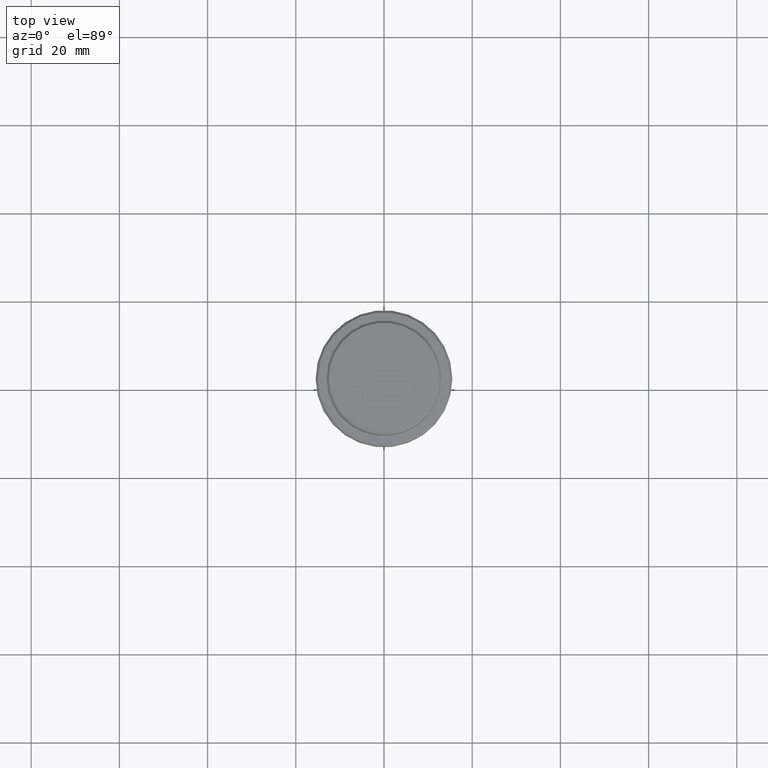
[diagram: clean part render]
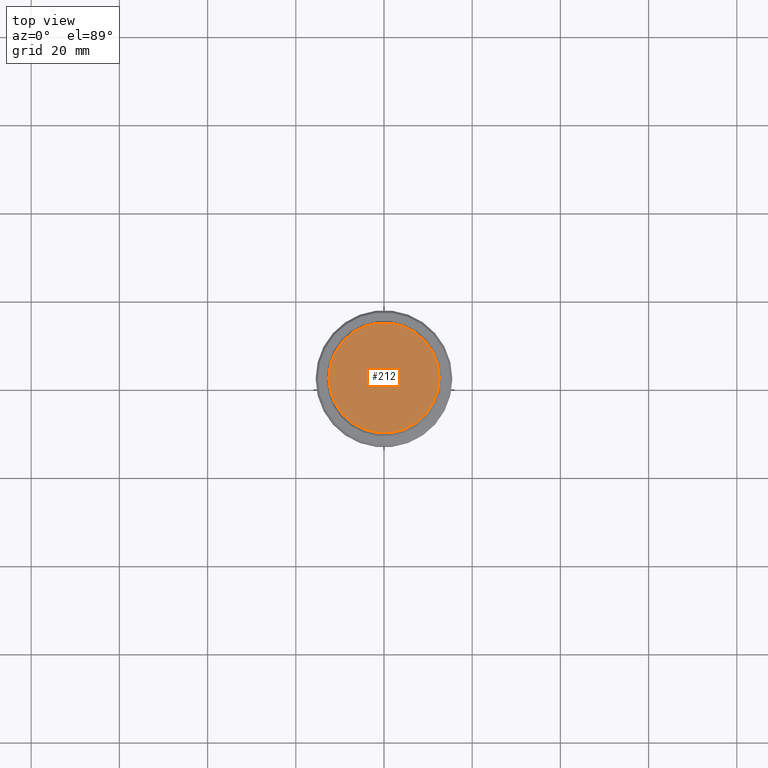
[diagram: same view with one face highlighted and labeled with its STEP entity id]
A machine part, top view. The second image highlights one B-rep face of the part: STEP entity #212.
In plain terms, the highlighted planar face has unit normal (0, -0, 1).
Its self-contained STEP definition (entity closure, byte-faithful):
#23 = DIRECTION ( 'NONE',  ( 1.000000000000000000, 0.000000000000000000, 0.000000000000000000 ) ) ;
#75 = CARTESIAN_POINT ( 'NONE',  ( -12.50000000000001243, 0.000000000000000000, 0.000000000000000000 ) ) ;
#132 = CIRCLE ( 'NONE', #799, 12.50000000000001243 ) ;
#212 = ADVANCED_FACE ( 'NONE', ( #970 ), #1301, .T. ) ;
#305 = EDGE_CURVE ( 'NONE', #1249, #921, #978, .T. ) ;
#319 = CARTESIAN_POINT ( 'NONE',  ( 0.000000000000000000, 0.000000000000000000, 0.000000000000000000 ) ) ;
#330 = DIRECTION ( 'NONE',  ( 1.000000000000000000, 0.000000000000000000, 0.000000000000000000 ) ) ;
#436 = CARTESIAN_POINT ( 'NONE',  ( 12.50000000000001243, 1.561424668912876097E-15, 0.000000000000000000 ) ) ;
#583 = CARTESIAN_POINT ( 'NONE',  ( 0.000000000000000000, 0.000000000000000000, 0.000000000000000000 ) ) ;
#618 = ORIENTED_EDGE ( 'NONE', *, *, #305, .T. ) ;
#645 = DIRECTION ( 'NONE',  ( 0.000000000000000000, -0.000000000000000000, 1.000000000000000000 ) ) ;
#799 = AXIS2_PLACEMENT_3D ( 'NONE', #583, #1151, #1139 ) ;
#921 = VERTEX_POINT ( 'NONE', #75 ) ;
#970 = FACE_OUTER_BOUND ( 'NONE', #988, .T. ) ;
#978 = CIRCLE ( 'NONE', #1417, 12.50000000000001243 ) ;
#988 = EDGE_LOOP ( 'NONE', ( #1131, #618 ) ) ;
#1108 = DIRECTION ( 'NONE',  ( -0.000000000000000000, -0.000000000000000000, 1.000000000000000000 ) ) ;
#1131 = ORIENTED_EDGE ( 'NONE', *, *, #1286, .T. ) ;
#1139 = DIRECTION ( 'NONE',  ( 1.000000000000000000, 0.000000000000000000, 0.000000000000000000 ) ) ;
#1151 = DIRECTION ( 'NONE',  ( -0.000000000000000000, -0.000000000000000000, 1.000000000000000000 ) ) ;
#1223 = CARTESIAN_POINT ( 'NONE',  ( 0.000000000000000000, 0.000000000000000000, 0.000000000000000000 ) ) ;
#1226 = AXIS2_PLACEMENT_3D ( 'NONE', #319, #645, #330 ) ;
#1249 = VERTEX_POINT ( 'NONE', #436 ) ;
#1286 = EDGE_CURVE ( 'NONE', #921, #1249, #132, .T. ) ;
#1301 = PLANE ( 'NONE',  #1226 ) ;
#1417 = AXIS2_PLACEMENT_3D ( 'NONE', #1223, #1108, #23 ) ;